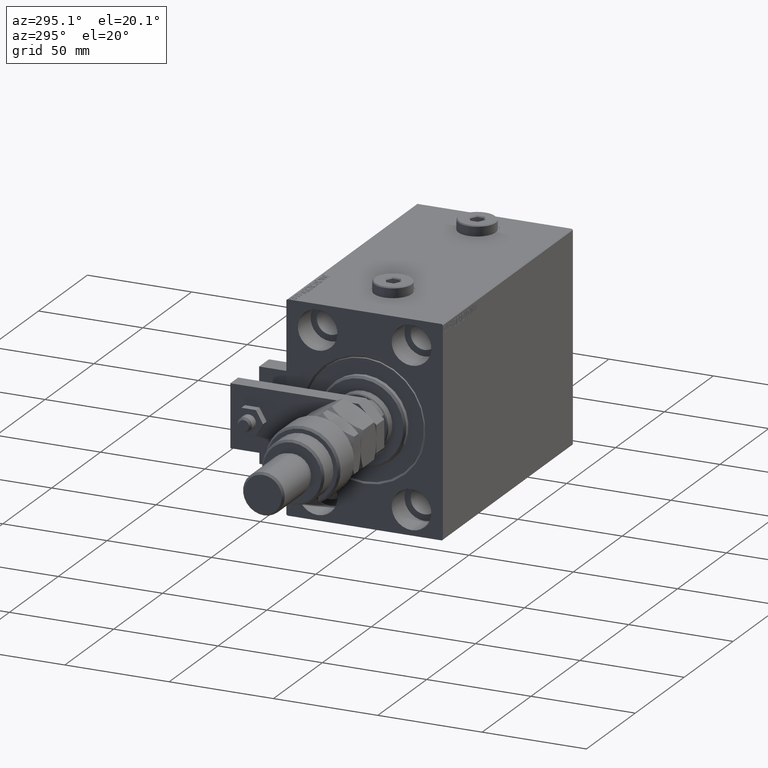
[diagram: clean part render]
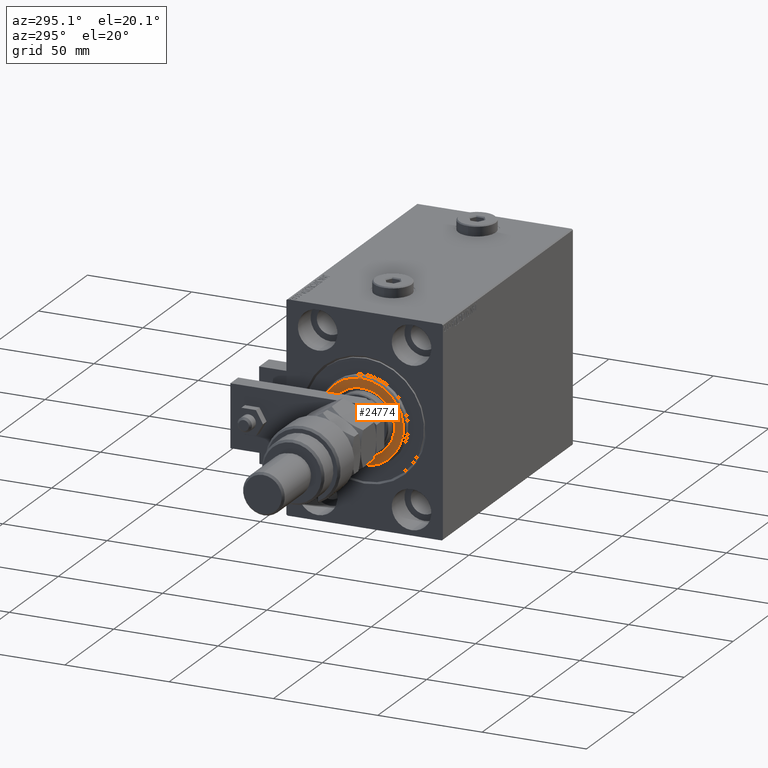
[diagram: same view with one face highlighted and labeled with its STEP entity id]
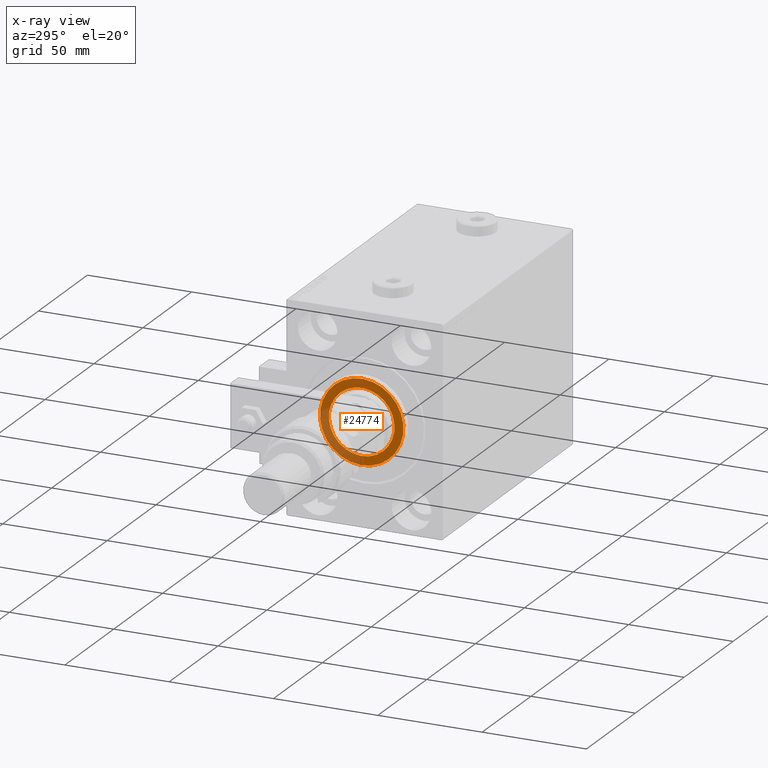
[diagram: x-ray of the same camera — body ghosted, the highlighted face saturated]
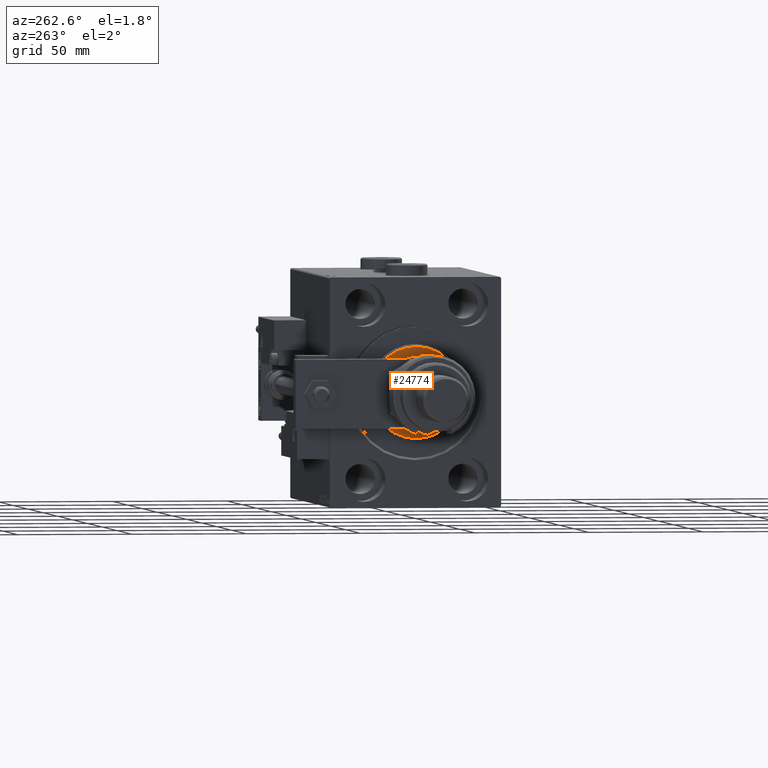
[diagram: same view with one face highlighted and labeled with its STEP entity id]
A machine part, auxiliary view. The second image highlights one B-rep face of the part: STEP entity #24774.
The next image is the same camera in x-ray: the body ghosted, the highlighted face saturated — about 29% of this face is hidden behind the body in this view.
A second angle (auxiliary view) of the same face is appended — the face is thin or edge-on in the first view.
In plain terms, the highlighted planar face has unit normal (-1, 0, 0).
Its self-contained STEP definition (entity closure, byte-faithful):
#1147 = EDGE_LOOP ( 'NONE', ( #46476, #24200 ) ) ;
#2212 = CARTESIAN_POINT ( 'NONE',  ( 3.000000000000000000, 0.000000000000000000, 0.000000000000000000 ) ) ;
#4589 = CARTESIAN_POINT ( 'NONE',  ( 3.000000000000000000, 0.000000000000000000, 15.75000000000000000 ) ) ;
#6180 = AXIS2_PLACEMENT_3D ( 'NONE', #33809, #42083, #12867 ) ;
#6278 = DIRECTION ( 'NONE',  ( 1.000000000000000000, -0.000000000000000000, 0.000000000000000000 ) ) ;
#6580 = EDGE_CURVE ( 'NONE', #27253, #36169, #9062, .T. ) ;
#6945 = CARTESIAN_POINT ( 'NONE',  ( 3.000000000000000000, 2.510525938252074087E-15, -19.99999999999999645 ) ) ;
#7583 = DIRECTION ( 'NONE',  ( 0.000000000000000000, 0.000000000000000000, -1.000000000000000000 ) ) ;
#8731 = FACE_OUTER_BOUND ( 'NONE', #1147, .T. ) ;
#9062 = CIRCLE ( 'NONE', #32824, 15.75000000000000000 ) ;
#11241 = DIRECTION ( 'NONE',  ( 0.000000000000000000, 0.000000000000000000, -1.000000000000000000 ) ) ;
#12305 = CARTESIAN_POINT ( 'NONE',  ( 3.000000000000000000, 0.000000000000000000, 19.99999999999999645 ) ) ;
#12867 = DIRECTION ( 'NONE',  ( 0.000000000000000000, 0.000000000000000000, -1.000000000000000000 ) ) ;
#14323 = AXIS2_PLACEMENT_3D ( 'NONE', #25014, #17564, #34356 ) ;
#16124 = DIRECTION ( 'NONE',  ( -1.000000000000000000, 0.000000000000000000, -0.000000000000000000 ) ) ;
#16402 = CARTESIAN_POINT ( 'NONE',  ( 3.000000000000000000, 0.000000000000000000, 0.000000000000000000 ) ) ;
#17564 = DIRECTION ( 'NONE',  ( 1.000000000000000000, -0.000000000000000000, 0.000000000000000000 ) ) ;
#18007 = ORIENTED_EDGE ( 'NONE', *, *, #24100, .T. ) ;
#18141 = VERTEX_POINT ( 'NONE', #12305 ) ;
#20257 = AXIS2_PLACEMENT_3D ( 'NONE', #16402, #16124, #7583 ) ;
#23604 = EDGE_CURVE ( 'NONE', #44028, #18141, #29007, .T. ) ;
#24100 = EDGE_CURVE ( 'NONE', #36169, #27253, #51885, .T. ) ;
#24200 = ORIENTED_EDGE ( 'NONE', *, *, #23604, .T. ) ;
#24774 = ADVANCED_FACE ( 'NONE', ( #8731, #49522 ), #50608, .T. ) ;
#25014 = CARTESIAN_POINT ( 'NONE',  ( 3.000000000000000000, 0.000000000000000000, 0.000000000000000000 ) ) ;
#27253 = VERTEX_POINT ( 'NONE', #4589 ) ;
#29007 = CIRCLE ( 'NONE', #39592, 19.99999999999999645 ) ;
#32824 = AXIS2_PLACEMENT_3D ( 'NONE', #2212, #52629, #33062 ) ;
#33062 = DIRECTION ( 'NONE',  ( 0.000000000000000000, 0.000000000000000000, -1.000000000000000000 ) ) ;
#33809 = CARTESIAN_POINT ( 'NONE',  ( 3.000000000000000000, 0.000000000000000000, 0.000000000000000000 ) ) ;
#34356 = DIRECTION ( 'NONE',  ( 0.000000000000000000, 0.000000000000000000, -1.000000000000000000 ) ) ;
#35404 = CIRCLE ( 'NONE', #14323, 19.99999999999999645 ) ;
#36169 = VERTEX_POINT ( 'NONE', #38380 ) ;
#38380 = CARTESIAN_POINT ( 'NONE',  ( 3.000000000000000000, 1.928818708657080950E-15, -15.75000000000000000 ) ) ;
#39592 = AXIS2_PLACEMENT_3D ( 'NONE', #40175, #6278, #11241 ) ;
#40175 = CARTESIAN_POINT ( 'NONE',  ( 3.000000000000000000, 0.000000000000000000, 0.000000000000000000 ) ) ;
#42083 = DIRECTION ( 'NONE',  ( 1.000000000000000000, -0.000000000000000000, 0.000000000000000000 ) ) ;
#44028 = VERTEX_POINT ( 'NONE', #6945 ) ;
#46476 = ORIENTED_EDGE ( 'NONE', *, *, #46950, .T. ) ;
#46950 = EDGE_CURVE ( 'NONE', #18141, #44028, #35404, .T. ) ;
#49522 = FACE_BOUND ( 'NONE', #54031, .T. ) ;
#50608 = PLANE ( 'NONE',  #6180 ) ;
#51885 = CIRCLE ( 'NONE', #20257, 15.75000000000000000 ) ;
#52629 = DIRECTION ( 'NONE',  ( -1.000000000000000000, 0.000000000000000000, -0.000000000000000000 ) ) ;
#53585 = ORIENTED_EDGE ( 'NONE', *, *, #6580, .T. ) ;
#54031 = EDGE_LOOP ( 'NONE', ( #53585, #18007 ) ) ;